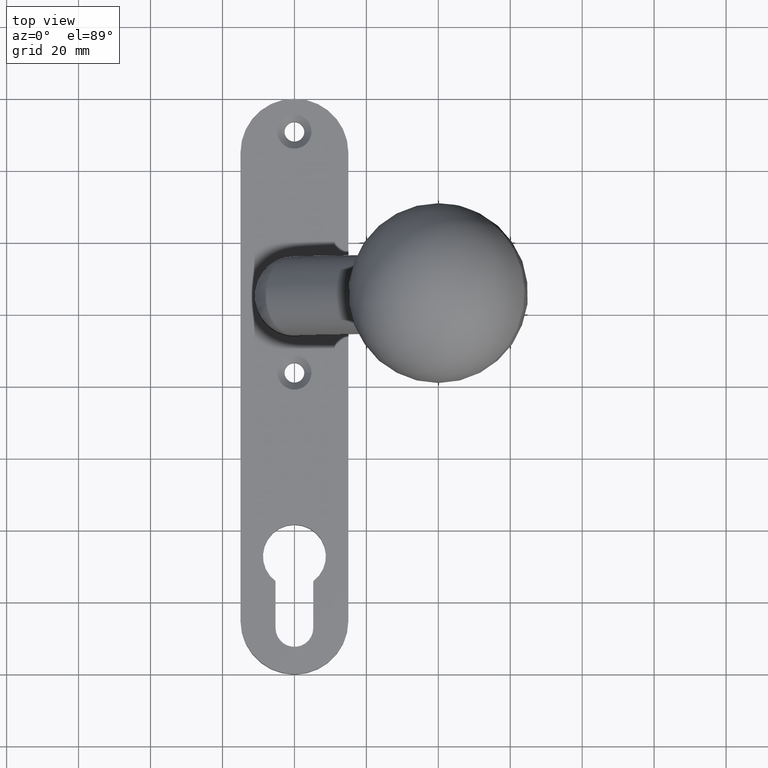
[diagram: clean part render]
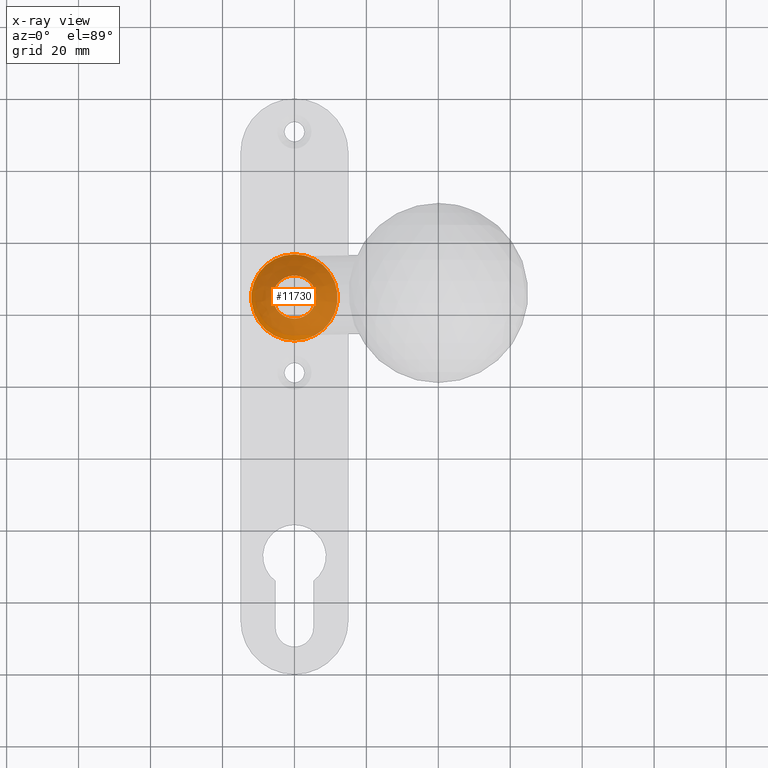
[diagram: x-ray — body ghosted, one internal face saturated and labeled with its STEP entity id]
A machine part, top view, then the same camera in x-ray: the body is ghosted and one INTERNAL B-rep face — a face not visible from any outside direction — is saturated and labeled: STEP entity #11730.
In plain terms, the highlighted conical surface has half-angle 45 deg.
Its self-contained STEP definition (entity closure, byte-faithful):
#13 = ORIENTED_EDGE ( 'NONE', *, *, #12152, .F. ) ;
#376 = VERTEX_POINT ( 'NONE', #6465 ) ;
#3994 = DIRECTION ( 'NONE',  ( 0.000000000000000000, 0.000000000000000000, -1.000000000000000000 ) ) ;
#4395 = DIRECTION ( 'NONE',  ( 0.000000000000000000, 0.000000000000000000, -1.000000000000000000 ) ) ;
#6020 = VERTEX_POINT ( 'NONE', #8372 ) ;
#6465 = CARTESIAN_POINT ( 'NONE',  ( 0.000000000000000000, 9.500000000000072831, -12.00000000000000000 ) ) ;
#6598 = EDGE_CURVE ( 'NONE', #376, #376, #12230, .T. ) ;
#6872 = AXIS2_PLACEMENT_3D ( 'NONE', #10945, #9857, #3994 ) ;
#6933 = CARTESIAN_POINT ( 'NONE',  ( 0.000000000000000000, 3.500000000000001332, 0.000000000000000000 ) ) ;
#8346 = FACE_BOUND ( 'NONE', #9522, .T. ) ;
#8372 = CARTESIAN_POINT ( 'NONE',  ( 0.000000000000000000, 3.500000000000001332, -6.000000000000000000 ) ) ;
#8774 = ORIENTED_EDGE ( 'NONE', *, *, #6598, .T. ) ;
#9506 = AXIS2_PLACEMENT_3D ( 'NONE', #6933, #10906, #11941 ) ;
#9522 = EDGE_LOOP ( 'NONE', ( #13 ) ) ;
#9857 = DIRECTION ( 'NONE',  ( -0.000000000000000000, -1.000000000000000000, -0.000000000000000000 ) ) ;
#10193 = CIRCLE ( 'NONE', #6872, 6.000000000000000000 ) ;
#10318 = AXIS2_PLACEMENT_3D ( 'NONE', #11111, #12105, #4395 ) ;
#10906 = DIRECTION ( 'NONE',  ( 0.000000000000000000, 1.000000000000000000, 0.000000000000000000 ) ) ;
#10945 = CARTESIAN_POINT ( 'NONE',  ( 0.000000000000000000, 3.500000000000001332, 0.000000000000000000 ) ) ;
#11111 = CARTESIAN_POINT ( 'NONE',  ( 0.000000000000000000, 9.500000000000072831, 0.000000000000000000 ) ) ;
#11146 = CONICAL_SURFACE ( 'NONE', #9506, 6.000000000000000000, 0.7853981633974423948 ) ;
#11619 = FACE_OUTER_BOUND ( 'NONE', #12281, .T. ) ;
#11730 = ADVANCED_FACE ( 'NONE', ( #11619, #8346 ), #11146, .T. ) ;
#11941 = DIRECTION ( 'NONE',  ( 0.000000000000000000, 0.000000000000000000, 1.000000000000000000 ) ) ;
#12105 = DIRECTION ( 'NONE',  ( -0.000000000000000000, -1.000000000000000000, -0.000000000000000000 ) ) ;
#12152 = EDGE_CURVE ( 'NONE', #6020, #6020, #10193, .T. ) ;
#12230 = CIRCLE ( 'NONE', #10318, 12.00000000000000000 ) ;
#12281 = EDGE_LOOP ( 'NONE', ( #8774 ) ) ;